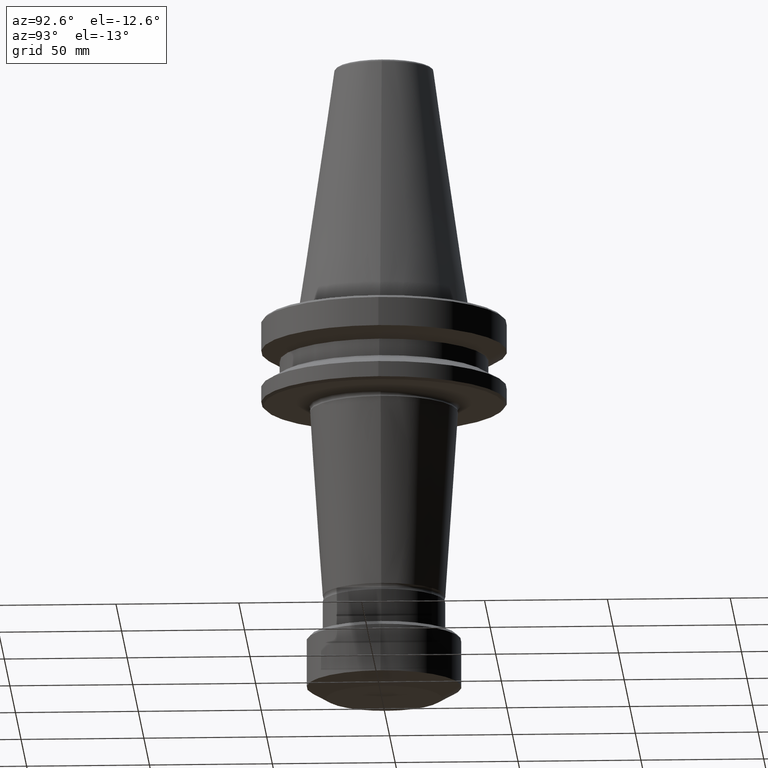
[diagram: clean part render]
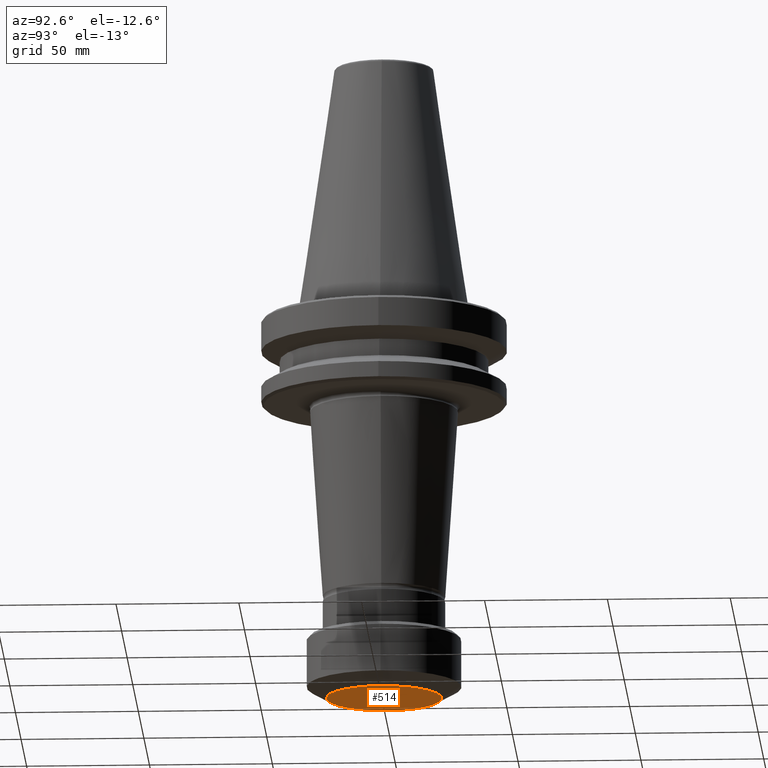
[diagram: same view with one face highlighted and labeled with its STEP entity id]
A machine part, auxiliary view. The second image highlights one B-rep face of the part: STEP entity #514.
In plain terms, the highlighted planar face has unit normal (0, -0, 1).
Its self-contained STEP definition (entity closure, byte-faithful):
#5 = CARTESIAN_POINT ( 'NONE',  ( -23.49999999996406400, 3.367778697653022800E-015, -160.0046026282246900 ) ) ;
#7 = EDGE_CURVE ( 'NONE', #268, #89, #1022, .T. ) ;
#32 = CARTESIAN_POINT ( 'NONE',  ( 0.0000000000000000000, 0.0000000000000000000, -160.0046026282246900 ) ) ;
#89 = VERTEX_POINT ( 'NONE', #5 ) ;
#106 = PLANE ( 'NONE',  #360 ) ;
#155 = CARTESIAN_POINT ( 'NONE',  ( 0.0000000000000000000, 0.0000000000000000000, -160.0046026282246900 ) ) ;
#260 = DIRECTION ( 'NONE',  ( -0.0000000000000000000, -0.0000000000000000000, 1.000000000000000000 ) ) ;
#268 = VERTEX_POINT ( 'NONE', #684 ) ;
#360 = AXIS2_PLACEMENT_3D ( 'NONE', #155, #1020, #1114 ) ;
#441 = DIRECTION ( 'NONE',  ( 1.000000000000000000, 0.0000000000000000000, 0.0000000000000000000 ) ) ;
#514 = ADVANCED_FACE ( 'NONE', ( #563 ), #106, .F. ) ;
#547 = CARTESIAN_POINT ( 'NONE',  ( 0.0000000000000000000, 0.0000000000000000000, -160.0046026282246900 ) ) ;
#563 = FACE_OUTER_BOUND ( 'NONE', #902, .T. ) ;
#684 = CARTESIAN_POINT ( 'NONE',  ( 23.49999999996406400, 0.0000000000000000000, -160.0046026282246900 ) ) ;
#748 = DIRECTION ( 'NONE',  ( -0.0000000000000000000, -0.0000000000000000000, 1.000000000000000000 ) ) ;
#770 = AXIS2_PLACEMENT_3D ( 'NONE', #32, #748, #1184 ) ;
#888 = EDGE_CURVE ( 'NONE', #89, #268, #1315, .T. ) ;
#902 = EDGE_LOOP ( 'NONE', ( #1326, #1016 ) ) ;
#1016 = ORIENTED_EDGE ( 'NONE', *, *, #888, .F. ) ;
#1020 = DIRECTION ( 'NONE',  ( 0.0000000000000000000, -0.0000000000000000000, 1.000000000000000000 ) ) ;
#1022 = CIRCLE ( 'NONE', #1135, 23.49999999996406400 ) ;
#1114 = DIRECTION ( 'NONE',  ( 1.000000000000000000, 0.0000000000000000000, 0.0000000000000000000 ) ) ;
#1135 = AXIS2_PLACEMENT_3D ( 'NONE', #547, #260, #441 ) ;
#1184 = DIRECTION ( 'NONE',  ( 1.000000000000000000, 0.0000000000000000000, 0.0000000000000000000 ) ) ;
#1315 = CIRCLE ( 'NONE', #770, 23.49999999996406400 ) ;
#1326 = ORIENTED_EDGE ( 'NONE', *, *, #7, .F. ) ;